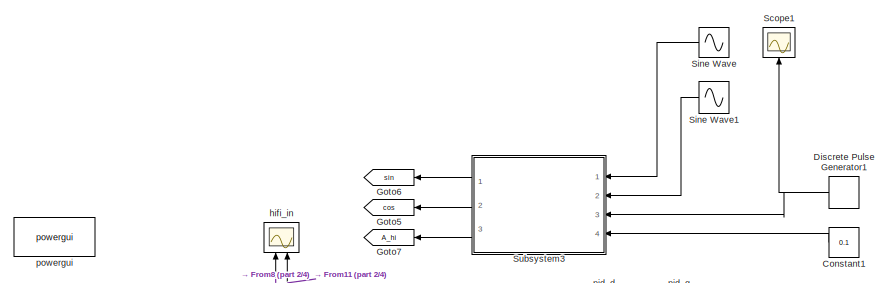
[diagram: root canvas - part 1/4, top center region]
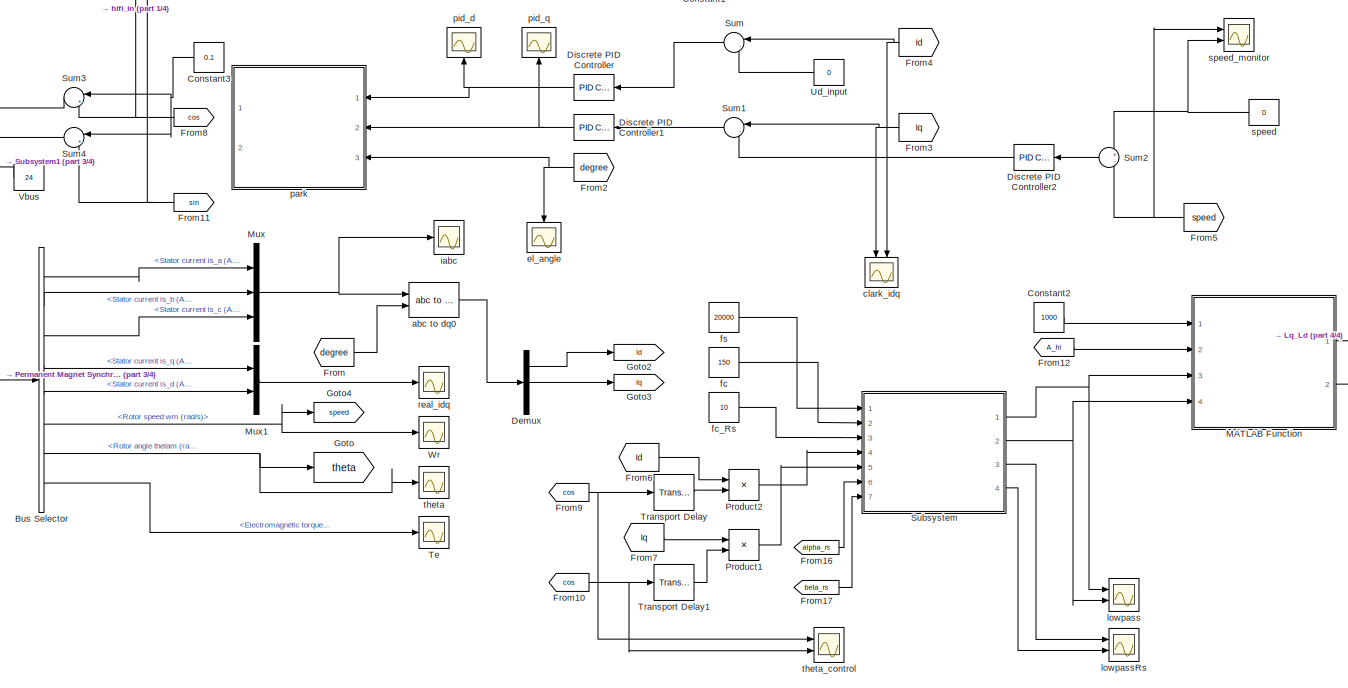
[diagram: root canvas - part 2/4, central region]
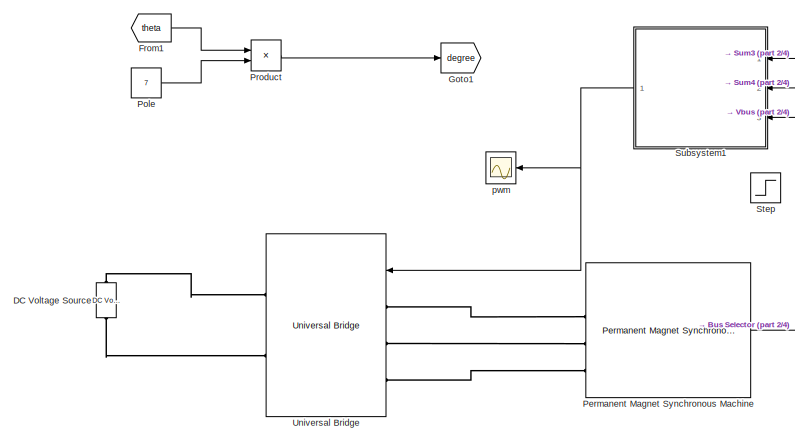
[diagram: root canvas - part 3/4, middle left region]
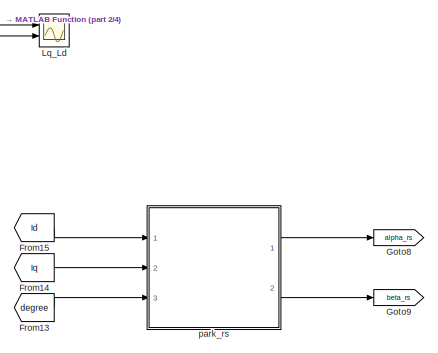
[diagram: root canvas - part 4/4, bottom right region]
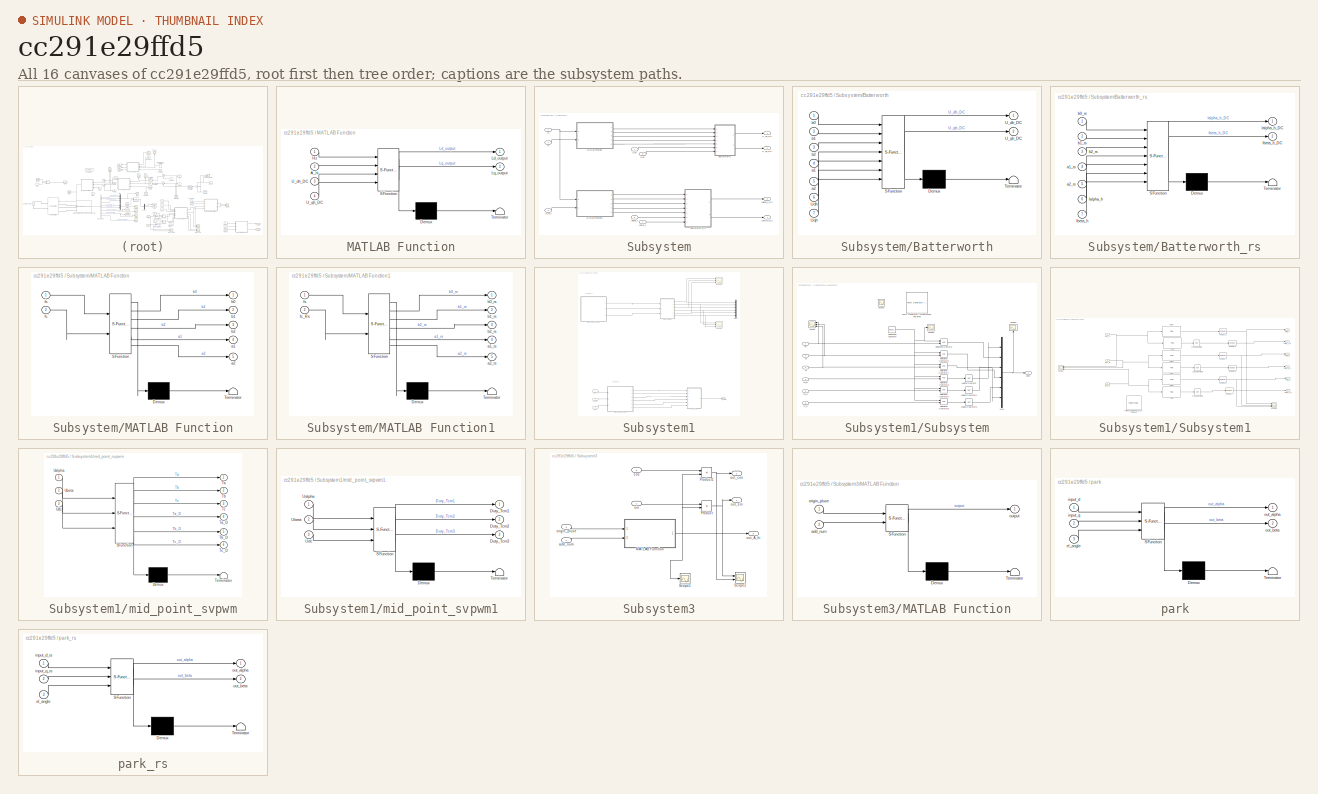
[diagram: thumbnail index - all 16 canvases of the model, root first then tree order]
MODEL slx_cc291e29ffd5
KIND model
CONFIG AbsTol = auto
CONFIG EnableMultiTasking = off
CONFIG FixedStep = auto
CONFIG MaxStep = 1e-8
CONFIG MinStep = auto
CONFIG RelTol = 1e-3
CONFIG SampleTimeConstraint = Unconstrained
CONFIG SolverName = VariableStepAuto
CONFIG StartTime = 0.0
CONFIG StopTime = 1.5
BLOCK [BusSelector] Bus Selector
  OutputSignals = Stator current is_a (A),Stator current is_b (A),Stator current is_c (A),Stator current is_q (A),Stator current is_d (A),Rotor speed wm (rad/s),Rotor angle thetam (rad),Electromagnetic torque Te (N*m)
  Ports = [1, 8]
BLOCK [Constant] Constant1
  Value = 0.1
BLOCK [Constant] Constant2
  Value = 1000
BLOCK [Constant] Constant3
  Value = 0.1
BLOCK [Reference] DC Voltage Source  REF=spsDCVoltageSourceLib/DC Voltage Source
  Ports = [0, 0, 0, 0, 0, 1, 1]
  SourceBlock = spsDCVoltageSourceLib/DC Voltage Source
  SourceProductBaseCode = PS
  SourceType = DC Voltage Source
BLOCK [Demux] Demux
  Outputs = 3
  Ports = [1, 3]
BLOCK [Reference] Discrete PID Controller  REF=slpidlib/PID Controller
  Ports = [1, 1]
  SourceBlock = slpidlib/PID Controller
  SourceProductBaseCode = SL
  SourceType = PID 1dof
BLOCK [Reference] Discrete PID Controller1  REF=slpidlib/PID Controller
  Ports = [1, 1]
  SourceBlock = slpidlib/PID Controller
  SourceProductBaseCode = SL
  SourceType = PID 1dof
BLOCK [Reference] Discrete PID Controller2  REF=slpidlib/PID Controller
  Ports = [1, 1]
  SourceBlock = slpidlib/PID Controller
  SourceProductBaseCode = SL
  SourceType = PID 1dof
BLOCK [DiscretePulseGenerator] Discrete Pulse Generator1
  Period = 50
  Ports = [0, 1]
  PulseWidth = 25
  SampleTime = 0.001
BLOCK [From] From
  GotoTag = degree
BLOCK [From] From1
  GotoTag = theta
BLOCK [From] From10
  GotoTag = cos
BLOCK [From] From11
  GotoTag = sin
BLOCK [From] From12
  GotoTag = A_hi
BLOCK [From] From13
  GotoTag = degree
BLOCK [From] From14
  GotoTag = Iq
BLOCK [From] From15
  GotoTag = Id
BLOCK [From] From16
  GotoTag = alpha_rs
BLOCK [From] From17
  GotoTag = beta_rs
BLOCK [From] From2
  GotoTag = degree
BLOCK [From] From3
  GotoTag = Iq
BLOCK [From] From4
  GotoTag = Id
BLOCK [From] From5
  GotoTag = speed
BLOCK [From] From6
  GotoTag = Id
BLOCK [From] From7
  GotoTag = Iq
BLOCK [From] From8
  GotoTag = cos
BLOCK [From] From9
  GotoTag = cos
BLOCK [Goto] Goto
  GotoTag = theta
BLOCK [Goto] Goto1
  GotoTag = degree
BLOCK [Goto] Goto2
  GotoTag = Id
BLOCK [Goto] Goto3
  GotoTag = Iq
BLOCK [Goto] Goto4
  GotoTag = speed
BLOCK [Goto] Goto5
  GotoTag = cos
BLOCK [Goto] Goto6
  GotoTag = sin
BLOCK [Goto] Goto7
  GotoTag = A_hi
BLOCK [Goto] Goto8
  GotoTag = alpha_rs
BLOCK [Goto] Goto9
  GotoTag = beta_rs
BLOCK [Scope] Lq_Ld
  Floating = off
  NumInputPorts = 2
  Ports = [2]
  ScopeSpecificationString = Simulink.scopes.TimeScopeBlockCfg('CurrentConfiguration', extmgr.ConfigurationSet(extmgr.Configuration('Core','General UI',true),extmgr.Configuration('Core','Source UI',true),extmgr.Configuration('Sources','WiredSimulink',true,'DataLoggingVariableName','ScopeData1'),extmgr.Configuration('Visuals','Time Domain',true,'SerializedDisplays',{struct('MinYLimReal','-0.00055','MaxYLimReal','0.01275','YLab...<+1776ch>
BLOCK [SubSystem] MATLAB Function
  ErrorFcn = Stateflow.Translate.translate
  PermitHierarchicalResolution = ExplicitOnly
  Ports = [4, 2]
  RequestExecContextInheritance = off
  SFBlockType = MATLAB Function
  TreatAsAtomicUnit = on
BLOCK [Demux] MATLAB Function/ Demux 
  Outputs = 1
  Ports = [1, 1]
BLOCK [S-Function] MATLAB Function/ SFunction 
  EnableBusSupport = on
  FunctionName = sf_sfun
  PortCounts = [4 3]
  Ports = [4, 3]
  SFcnIsStateOwnerBlock = off
  SFunctionDeploymentMode = off
  Tag = Stateflow S-Function 6
BLOCK [Terminator] MATLAB Function/ Terminator 
BLOCK [Inport] MATLAB Function/A_hi
  Port = 2
BLOCK [Inport] MATLAB Function/Hz
BLOCK [Outport] MATLAB Function/Ld_output
BLOCK [Outport] MATLAB Function/Lq_output
  Port = 2
BLOCK [Inport] MATLAB Function/U_dh_DC
  Port = 3
BLOCK [Inport] MATLAB Function/U_qh_DC
  Port = 4
BLOCK [Mux] Mux
  DisplayOption = bar
  Inputs = 3
  Ports = [3, 1]
BLOCK [Mux] Mux1
  DisplayOption = bar
  Inputs = 2
  Ports = [2, 1]
BLOCK [Reference] Permanent Magnet Synchronous Machine  REF=spsPermanentMagnetSynchronousMachineLib/Permanent Magnet
Synchronous Machine
  Ports = [1, 1, 0, 0, 0, 3]
  SourceBlock = spsPermanentMagnetSynchronousMachineLib/Permanent Magnet\nSynchronous Machine
  SourceProductBaseCode = PS
  SourceType = Permanent Magnet Synchronous Machine
BLOCK [Constant] Pole
  Value = 7
BLOCK [Product] Product
  Ports = [2, 1]
BLOCK [Product] Product1
  Ports = [2, 1]
BLOCK [Product] Product2
  Ports = [2, 1]
BLOCK [Scope] Scope1
  Floating = off
  NameLocation = left
  NumInputPorts = 1
  Ports = [1]
  ScopeSpecificationString = Simulink.scopes.TimeScopeBlockCfg('CurrentConfiguration', extmgr.ConfigurationSet(extmgr.Configuration('Core','General UI',true),extmgr.Configuration('Core','Source UI',true),extmgr.Configuration('Sources','WiredSimulink',true,'DataLoggingVariableName','ScopeData2'),extmgr.Configuration('Visuals','Time Domain',true,'SerializedDisplays',{struct('MinYLimReal','-0.125','MaxYLimReal','1.125','YLabelRe...<+1438ch>
BLOCK [Sin] Sine Wave
  Amplitude = 0.3
  Frequency = 1000
  Ports = [0, 1]
  SampleTime = 5e-5
  Samples = 126
  SineType = Sample based
BLOCK [Sin] Sine Wave1
  Amplitude = 0.3
  Frequency = 1000
  Offset = 32
  Phase = 0.5*pi
  Ports = [0, 1]
  SampleTime = 5e-5
  Samples = 126
  SineType = Sample based
BLOCK [Step] Step
  After = 0
  Commented = on
  SampleTime = 0
  Time = 0.35
BLOCK [SubSystem] Subsystem
  Ports = [7, 4]
  RequestExecContextInheritance = off
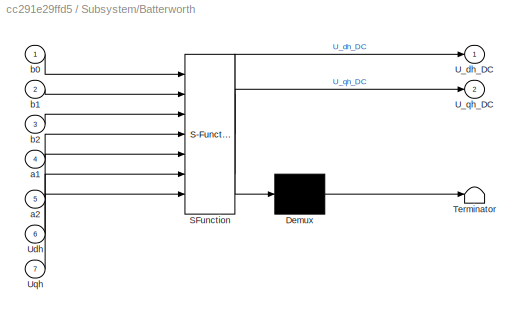
BLOCK [SubSystem] Subsystem/Batterworth
  ErrorFcn = Stateflow.Translate.translate
  PermitHierarchicalResolution = ExplicitOnly
  Ports = [7, 2]
  RequestExecContextInheritance = off
  SFBlockType = MATLAB Function
  SystemSampleTime = 0.0001
  TreatAsAtomicUnit = on
BLOCK [Demux] Subsystem/Batterworth/ Demux 
  Outputs = 1
  Ports = [1, 1]
BLOCK [S-Function] Subsystem/Batterworth/ SFunction 
  EnableBusSupport = on
  FunctionName = sf_sfun
  PortCounts = [7 3]
  Ports = [7, 3]
  SFcnIsStateOwnerBlock = off
  SFunctionDeploymentMode = off
  Tag = Stateflow S-Function 4
BLOCK [Terminator] Subsystem/Batterworth/ Terminator 
BLOCK [Outport] Subsystem/Batterworth/U_dh_DC
BLOCK [Outport] Subsystem/Batterworth/U_qh_DC
  Port = 2
BLOCK [Inport] Subsystem/Batterworth/Udh
  Port = 6
BLOCK [Inport] Subsystem/Batterworth/Uqh
  Port = 7
BLOCK [Inport] Subsystem/Batterworth/a1
  Port = 4
BLOCK [Inport] Subsystem/Batterworth/a2
  Port = 5
BLOCK [Inport] Subsystem/Batterworth/b0
BLOCK [Inport] Subsystem/Batterworth/b1
  Port = 2
BLOCK [Inport] Subsystem/Batterworth/b2
  Port = 3
BLOCK [SubSystem] Subsystem/Batterworth_rs
  ErrorFcn = Stateflow.Translate.translate
  PermitHierarchicalResolution = ExplicitOnly
  Ports = [7, 2]
  RequestExecContextInheritance = off
  SFBlockType = MATLAB Function
  SystemSampleTime = 0.0001
  TreatAsAtomicUnit = on
BLOCK [Demux] Subsystem/Batterworth_rs/ Demux 
  Outputs = 1
  Ports = [1, 1]
BLOCK [S-Function] Subsystem/Batterworth_rs/ SFunction 
  EnableBusSupport = on
  FunctionName = sf_sfun
  PortCounts = [7 3]
  Ports = [7, 3]
  SFcnIsStateOwnerBlock = off
  SFunctionDeploymentMode = off
  Tag = Stateflow S-Function 9
BLOCK [Terminator] Subsystem/Batterworth_rs/ Terminator 
BLOCK [Inport] Subsystem/Batterworth_rs/Ialpha_h
  Port = 6
BLOCK [Outport] Subsystem/Batterworth_rs/Ialpha_h_DC
BLOCK [Inport] Subsystem/Batterworth_rs/Ibeta_h
  Port = 7
BLOCK [Outport] Subsystem/Batterworth_rs/Ibeta_h_DC
  Port = 2
BLOCK [Inport] Subsystem/Batterworth_rs/a1_rs
  Port = 4
BLOCK [Inport] Subsystem/Batterworth_rs/a2_rs
  Port = 5
BLOCK [Inport] Subsystem/Batterworth_rs/b0_rs
BLOCK [Inport] Subsystem/Batterworth_rs/b1_rs
  Port = 2
BLOCK [Inport] Subsystem/Batterworth_rs/b2_rs
  Port = 3
BLOCK [Inport] Subsystem/Ialpha_h
  Port = 6
BLOCK [Outport] Subsystem/Ialpha_h_DC
  Port = 3
BLOCK [Inport] Subsystem/Ibeta_h
  Port = 7
BLOCK [Outport] Subsystem/Ibeta_h_DC
  Port = 4
BLOCK [SubSystem] Subsystem/MATLAB Function
  ErrorFcn = Stateflow.Translate.translate
  PermitHierarchicalResolution = ExplicitOnly
  Ports = [2, 5]
  RequestExecContextInheritance = off
  SFBlockType = MATLAB Function
  TreatAsAtomicUnit = on
BLOCK [Demux] Subsystem/MATLAB Function/ Demux 
  Outputs = 1
  Ports = [1, 1]
BLOCK [S-Function] Subsystem/MATLAB Function/ SFunction 
  EnableBusSupport = on
  FunctionName = sf_sfun
  PortCounts = [2 6]
  Ports = [2, 6]
  SFcnIsStateOwnerBlock = off
  SFunctionDeploymentMode = off
  Tag = Stateflow S-Function 5
BLOCK [Terminator] Subsystem/MATLAB Function/ Terminator 
BLOCK [Outport] Subsystem/MATLAB Function/a1
  Port = 4
BLOCK [Outport] Subsystem/MATLAB Function/a2
  Port = 5
BLOCK [Outport] Subsystem/MATLAB Function/b0
BLOCK [Outport] Subsystem/MATLAB Function/b1
  Port = 2
BLOCK [Outport] Subsystem/MATLAB Function/b2
  Port = 3
BLOCK [Inport] Subsystem/MATLAB Function/fc
  Port = 2
BLOCK [Inport] Subsystem/MATLAB Function/fs
BLOCK [SubSystem] Subsystem/MATLAB Function1
  ErrorFcn = Stateflow.Translate.translate
  PermitHierarchicalResolution = ExplicitOnly
  Ports = [2, 5]
  RequestExecContextInheritance = off
  SFBlockType = MATLAB Function
  TreatAsAtomicUnit = on
BLOCK [Demux] Subsystem/MATLAB Function1/ Demux 
  Outputs = 1
  Ports = [1, 1]
BLOCK [S-Function] Subsystem/MATLAB Function1/ SFunction 
  EnableBusSupport = on
  FunctionName = sf_sfun
  PortCounts = [2 6]
  Ports = [2, 6]
  SFcnIsStateOwnerBlock = off
  SFunctionDeploymentMode = off
  Tag = Stateflow S-Function 8
BLOCK [Terminator] Subsystem/MATLAB Function1/ Terminator 
BLOCK [Outport] Subsystem/MATLAB Function1/a1_rs
  Port = 4
BLOCK [Outport] Subsystem/MATLAB Function1/a2_rs
  Port = 5
BLOCK [Outport] Subsystem/MATLAB Function1/b0_rs
BLOCK [Outport] Subsystem/MATLAB Function1/b1_rs
  Port = 2
BLOCK [Outport] Subsystem/MATLAB Function1/b2_rs
  Port = 3
BLOCK [Inport] Subsystem/MATLAB Function1/fc_Rs
  Port = 2
BLOCK [Inport] Subsystem/MATLAB Function1/fs
BLOCK [Outport] Subsystem/U_dh_DC
BLOCK [Outport] Subsystem/U_qh_DC
  Port = 2
BLOCK [Inport] Subsystem/Udh
  Port = 4
BLOCK [Inport] Subsystem/Uqh
  Port = 5
BLOCK [Inport] Subsystem/fc
  Port = 2
BLOCK [Inport] Subsystem/fc_Rs
  Port = 3
BLOCK [Inport] Subsystem/fs
BLOCK [SubSystem] Subsystem1
  Ports = [3, 1]
  RequestExecContextInheritance = off
BLOCK [Outport] Subsystem1/All_pwm
BLOCK [Mux] Subsystem1/Mux1
  Commented = on
  DisplayOption = bar
  Inputs = 6
  Ports = [6, 1]
BLOCK [Scope] Subsystem1/Scope3
  Commented = on
  Floating = off
  NumInputPorts = 3
  Ports = [3]
  ScopeSpecificationString = Simulink.scopes.TimeScopeBlockCfg('CurrentConfiguration', extmgr.ConfigurationSet(extmgr.Configuration('Core','General UI',true),extmgr.Configuration('Core','Source UI',true),extmgr.Configuration('Sources','WiredSimulink',true,'DataLoggingVariableName','ScopeData1'),extmgr.Configuration('Visuals','Time Domain',true,'SerializedDisplays',{struct('MinYLimReal','-0.1','MaxYLimReal','1.1','YLabelReal',...<+1863ch>
BLOCK [Scope] Subsystem1/Scope4
  Commented = on
  Floating = off
  NumInputPorts = 3
  Ports = [3]
  ScopeSpecificationString = Simulink.scopes.TimeScopeBlockCfg('CurrentConfiguration', extmgr.ConfigurationSet(extmgr.Configuration('Core','General UI',true),extmgr.Configuration('Core','Source UI',true),extmgr.Configuration('Sources','WiredSimulink',true,'DataLoggingVariableName','ScopeData2'),extmgr.Configuration('Visuals','Time Domain',true,'SerializedDisplays',{struct('MinYLimReal','-0.1','MaxYLimReal','1.1','YLabelReal',...<+1863ch>
BLOCK [SubSystem] Subsystem1/Subsystem
  Ports = [6, 1]
  RequestExecContextInheritance = off
BLOCK [Logic] Subsystem1/Subsystem/Logical Operator
  AllPortsSameDT = off
  Operator = NOT
  OutDataTypeStr = boolean
  Ports = [1, 1]
BLOCK [Logic] Subsystem1/Subsystem/Logical Operator1
  AllPortsSameDT = off
  Operator = NOT
  OutDataTypeStr = boolean
  Ports = [1, 1]
BLOCK [Logic] Subsystem1/Subsystem/Logical Operator2
  AllPortsSameDT = off
  Operator = NOT
  OutDataTypeStr = boolean
  Ports = [1, 1]
BLOCK [Mux] Subsystem1/Subsystem/Mux
  DisplayOption = bar
  Inputs = 6
  Ports = [6, 1]
BLOCK [Reference] Subsystem1/Subsystem/PWM Generator (Three-phase, Two-level)  REF=eePwmGeneratorTwoLevel/PWM Generator
(Three-phase, Two-level)
  Commented = on
  Ports = [2, 2]
  SourceBlock = eePwmGeneratorTwoLevel/PWM Generator\n(Three-phase, Two-level)
  SourceProductBaseCode = PS
  SourceType = PWM Generator (three-phase, two-level)
BLOCK [RelationalOperator] Subsystem1/Subsystem/Relational Operator
  InputSameDT = off
  OutDataTypeStr = boolean
  Ports = [2, 1]
  RndMeth = Simplest
BLOCK [RelationalOperator] Subsystem1/Subsystem/Relational Operator1
  InputSameDT = off
  OutDataTypeStr = boolean
  Ports = [2, 1]
  RndMeth = Simplest
BLOCK [RelationalOperator] Subsystem1/Subsystem/Relational Operator2
  InputSameDT = off
  OutDataTypeStr = boolean
  Ports = [2, 1]
  RndMeth = Simplest
BLOCK [RelationalOperator] Subsystem1/Subsystem/Relational Operator3
  InputSameDT = off
  OutDataTypeStr = boolean
  Ports = [2, 1]
  RndMeth = Simplest
BLOCK [RelationalOperator] Subsystem1/Subsystem/Relational Operator4
  InputSameDT = off
  OutDataTypeStr = boolean
  Ports = [2, 1]
  RndMeth = Simplest
BLOCK [RelationalOperator] Subsystem1/Subsystem/Relational Operator5
  InputSameDT = off
  OutDataTypeStr = boolean
  Ports = [2, 1]
  RndMeth = Simplest
BLOCK [Reference] Subsystem1/Subsystem/Repeating Sequence  REF=simulink/Sources/Repeating
Sequence
  Ports = [0, 1]
  SourceBlock = simulink/Sources/Repeating\nSequence
  SourceProductBaseCode = SL
  SourceType = Repeating table
BLOCK [Scope] Subsystem1/Subsystem/Scope
  Floating = off
  NumInputPorts = 3
  Ports = [3]
  ScopeSpecificationString = Simulink.scopes.TimeScopeBlockCfg('CurrentConfiguration', extmgr.ConfigurationSet(extmgr.Configuration('Core','General UI',true),extmgr.Configuration('Core','Source UI',true),extmgr.Configuration('Sources','WiredSimulink',true,'DataLoggingVariableName','ScopeData1'),extmgr.Configuration('Visuals','Time Domain',true,'SerializedDisplays',{struct('MinYLimReal','1180.19238','MaxYLimReal','1699.80762',...<+1851ch>
BLOCK [Scope] Subsystem1/Subsystem/Scope1
  Commented = on
  Floating = off
  NumInputPorts = 1
  Ports = [1]
  ScopeSpecificationString = Simulink.scopes.TimeScopeBlockCfg('CurrentConfiguration', extmgr.ConfigurationSet(extmgr.Configuration('Core','General UI',true),extmgr.Configuration('Core','Source UI',true),extmgr.Configuration('Sources','WiredSimulink',true,'DataLoggingVariableName','ScopeData6'),extmgr.Configuration('Visuals','Time Domain',true,'SerializedDisplays',{struct('MinYLimReal','10.91747','MaxYLimReal','13.08253','YLa...<+1598ch>
BLOCK [Scope] Subsystem1/Subsystem/Scope2
  Floating = off
  NameLocation = left
  NumInputPorts = 1
  Ports = [1]
  ScopeSpecificationString = Simulink.scopes.TimeScopeBlockCfg('CurrentConfiguration', extmgr.ConfigurationSet(extmgr.Configuration('Core','General UI',true),extmgr.Configuration('Core','Source UI',true),extmgr.Configuration('Sources','WiredSimulink',true,'DataLoggingVariableName','ScopeData3'),extmgr.Configuration('Visuals','Time Domain',true,'SerializedDisplays',{struct('MinYLimReal','-0.125','MaxYLimReal','1.125','YLabelRe...<+2005ch>
BLOCK [Scope] Subsystem1/Subsystem/Scope3
  Floating = off
  NumInputPorts = 1
  Ports = [1]
  ScopeSpecificationString = Simulink.scopes.TimeScopeBlockCfg('CurrentConfiguration', extmgr.ConfigurationSet(extmgr.Configuration('Core','General UI',true),extmgr.Configuration('Core','Source UI',true),extmgr.Configuration('Sources','WiredSimulink',true,'DataLoggingVariableName','ScopeData1'),extmgr.Configuration('Visuals','Time Domain',true,'SerializedDisplays',{struct('MinYLimReal','-360.00000','MaxYLimReal','3240.00000',...<+1536ch>
BLOCK [Inport] Subsystem1/Subsystem/Ta
  OutDataTypeStr = double
BLOCK [Inport] Subsystem1/Subsystem/Ta_D
  OutDataTypeStr = double
  Port = 4
BLOCK [Inport] Subsystem1/Subsystem/Tb
  OutDataTypeStr = double
  Port = 2
BLOCK [Inport] Subsystem1/Subsystem/Tb_D
  OutDataTypeStr = double
  Port = 5
BLOCK [Inport] Subsystem1/Subsystem/Tc
  OutDataTypeStr = double
  Port = 3
BLOCK [Inport] Subsystem1/Subsystem/Tc_D
  OutDataTypeStr = double
  Port = 6
BLOCK [Outport] Subsystem1/Subsystem/pwm
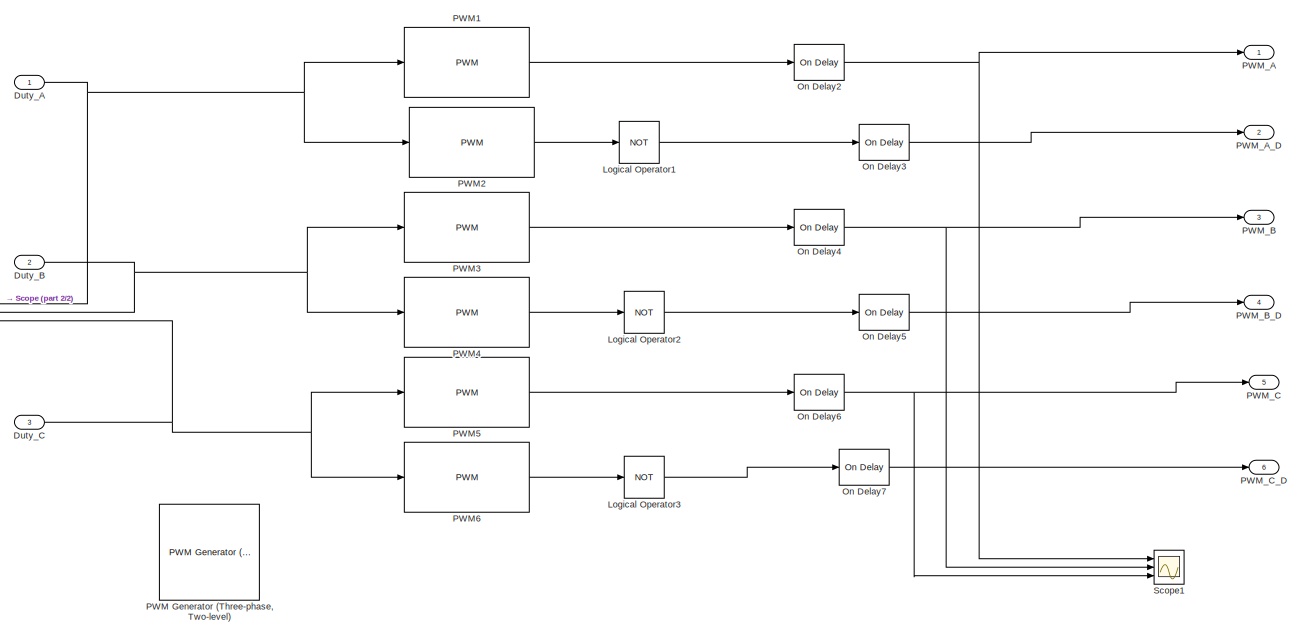
[diagram: Subsystem1/Subsystem1 - part 1/2, most of the canvas]
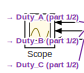
[diagram: Subsystem1/Subsystem1 - part 2/2, middle left region]
BLOCK [SubSystem] Subsystem1/Subsystem1
  Commented = on
  Ports = [3, 6]
  RequestExecContextInheritance = off
BLOCK [Inport] Subsystem1/Subsystem1/Duty_A
  OutDataTypeStr = double
BLOCK [Inport] Subsystem1/Subsystem1/Duty_B
  OutDataTypeStr = double
  Port = 2
BLOCK [Inport] Subsystem1/Subsystem1/Duty_C
  OutDataTypeStr = double
  Port = 3
BLOCK [Logic] Subsystem1/Subsystem1/Logical Operator1
  AllPortsSameDT = off
  Operator = NOT
  OutDataTypeStr = boolean
  Ports = [1, 1]
BLOCK [Logic] Subsystem1/Subsystem1/Logical Operator2
  AllPortsSameDT = off
  Operator = NOT
  OutDataTypeStr = boolean
  Ports = [1, 1]
BLOCK [Logic] Subsystem1/Subsystem1/Logical Operator3
  AllPortsSameDT = off
  Operator = NOT
  OutDataTypeStr = boolean
  Ports = [1, 1]
BLOCK [Reference] Subsystem1/Subsystem1/On Delay2  REF=spsOnDelayLib/On Delay
  Ports = [1, 1]
  SourceBlock = spsOnDelayLib/On Delay
  SourceProductBaseCode = PS
  SourceType = On/Off Delay
BLOCK [Reference] Subsystem1/Subsystem1/On Delay3  REF=spsOnDelayLib/On Delay
  Ports = [1, 1]
  SourceBlock = spsOnDelayLib/On Delay
  SourceProductBaseCode = PS
  SourceType = On/Off Delay
BLOCK [Reference] Subsystem1/Subsystem1/On Delay4  REF=spsOnDelayLib/On Delay
  Ports = [1, 1]
  SourceBlock = spsOnDelayLib/On Delay
  SourceProductBaseCode = PS
  SourceType = On/Off Delay
BLOCK [Reference] Subsystem1/Subsystem1/On Delay5  REF=spsOnDelayLib/On Delay
  Ports = [1, 1]
  SourceBlock = spsOnDelayLib/On Delay
  SourceProductBaseCode = PS
  SourceType = On/Off Delay
BLOCK [Reference] Subsystem1/Subsystem1/On Delay6  REF=spsOnDelayLib/On Delay
  Ports = [1, 1]
  SourceBlock = spsOnDelayLib/On Delay
  SourceProductBaseCode = PS
  SourceType = On/Off Delay
BLOCK [Reference] Subsystem1/Subsystem1/On Delay7  REF=spsOnDelayLib/On Delay
  Ports = [1, 1]
  SourceBlock = spsOnDelayLib/On Delay
  SourceProductBaseCode = PS
  SourceType = On/Off Delay
BLOCK [Reference] Subsystem1/Subsystem1/PWM Generator (Three-phase, Two-level)  REF=eePwmGeneratorTwoLevel/PWM Generator
(Three-phase, Two-level)
  Ports = [2, 2]
  SourceBlock = eePwmGeneratorTwoLevel/PWM Generator\n(Three-phase, Two-level)
  SourceProductBaseCode = PS
  SourceType = PWM Generator (three-phase, two-level)
BLOCK [Reference] Subsystem1/Subsystem1/PWM1  REF=simulink/Discontinuities/PWM
  DisableCoverage = on
  Ports = [1, 1]
  SourceBlock = simulink/Discontinuities/PWM
  SourceProductBaseCode = SL
  SourceType = PWM
BLOCK [Reference] Subsystem1/Subsystem1/PWM2  REF=simulink/Discontinuities/PWM
  DisableCoverage = on
  Ports = [1, 1]
  SourceBlock = simulink/Discontinuities/PWM
  SourceProductBaseCode = SL
  SourceType = PWM
BLOCK [Reference] Subsystem1/Subsystem1/PWM3  REF=simulink/Discontinuities/PWM
  DisableCoverage = on
  Ports = [1, 1]
  SourceBlock = simulink/Discontinuities/PWM
  SourceProductBaseCode = SL
  SourceType = PWM
BLOCK [Reference] Subsystem1/Subsystem1/PWM4  REF=simulink/Discontinuities/PWM
  DisableCoverage = on
  Ports = [1, 1]
  SourceBlock = simulink/Discontinuities/PWM
  SourceProductBaseCode = SL
  SourceType = PWM
BLOCK [Reference] Subsystem1/Subsystem1/PWM5  REF=simulink/Discontinuities/PWM
  DisableCoverage = on
  Ports = [1, 1]
  SourceBlock = simulink/Discontinuities/PWM
  SourceProductBaseCode = SL
  SourceType = PWM
BLOCK [Reference] Subsystem1/Subsystem1/PWM6  REF=simulink/Discontinuities/PWM
  DisableCoverage = on
  Ports = [1, 1]
  SourceBlock = simulink/Discontinuities/PWM
  SourceProductBaseCode = SL
  SourceType = PWM
BLOCK [Outport] Subsystem1/Subsystem1/PWM_A
  OutDataTypeStr = double
BLOCK [Outport] Subsystem1/Subsystem1/PWM_A_D
  OutDataTypeStr = double
  Port = 2
BLOCK [Outport] Subsystem1/Subsystem1/PWM_B
  OutDataTypeStr = double
  Port = 3
BLOCK [Outport] Subsystem1/Subsystem1/PWM_B_D
  OutDataTypeStr = double
  Port = 4
BLOCK [Outport] Subsystem1/Subsystem1/PWM_C
  OutDataTypeStr = double
  Port = 5
BLOCK [Outport] Subsystem1/Subsystem1/PWM_C_D
  OutDataTypeStr = double
  Port = 6
BLOCK [Scope] Subsystem1/Subsystem1/Scope
  Floating = off
  NumInputPorts = 3
  Ports = [3]
  ScopeSpecificationString = Simulink.scopes.TimeScopeBlockCfg('CurrentConfiguration', extmgr.ConfigurationSet(extmgr.Configuration('Core','General UI',true),extmgr.Configuration('Core','Source UI',true),extmgr.Configuration('Sources','WiredSimulink',true,'DataLoggingVariableName','ScopeData1'),extmgr.Configuration('Visuals','Time Domain',true,'SerializedDisplays',{struct('MinYLimReal','0.00000','MaxYLimReal','1.00000','YLabe...<+1466ch>
BLOCK [Scope] Subsystem1/Subsystem1/Scope1
  Floating = off
  NumInputPorts = 3
  Ports = [3]
  ScopeSpecificationString = Simulink.scopes.TimeScopeBlockCfg('CurrentConfiguration', extmgr.ConfigurationSet(extmgr.Configuration('Core','General UI',true),extmgr.Configuration('Core','Source UI',true),extmgr.Configuration('Sources','WiredSimulink',true,'DataLoggingVariableName','ScopeData2'),extmgr.Configuration('Visuals','Time Domain',true,'SerializedDisplays',{struct('MinYLimReal','-10.00000','MaxYLimReal','10.00000','YL...<+1486ch>
BLOCK [Inport] Subsystem1/Ualpha
BLOCK [Inport] Subsystem1/Ubeta
  Port = 2
BLOCK [Inport] Subsystem1/Vbus
  Port = 3
BLOCK [SubSystem] Subsystem1/mid_point_svpwm
  ErrorFcn = Stateflow.Translate.translate
  PermitHierarchicalResolution = ExplicitOnly
  Ports = [3, 6]
  RequestExecContextInheritance = off
  SFBlockType = MATLAB Function
  TreatAsAtomicUnit = on
BLOCK [Demux] Subsystem1/mid_point_svpwm/ Demux 
  Outputs = 1
  Ports = [1, 1]
BLOCK [S-Function] Subsystem1/mid_point_svpwm/ SFunction 
  EnableBusSupport = on
  FunctionName = sf_sfun
  PortCounts = [3 7]
  Ports = [3, 7]
  SFcnIsStateOwnerBlock = off
  SFunctionDeploymentMode = off
  Tag = Stateflow S-Function 2
BLOCK [Terminator] Subsystem1/mid_point_svpwm/ Terminator 
BLOCK [Outport] Subsystem1/mid_point_svpwm/Ta
BLOCK [Outport] Subsystem1/mid_point_svpwm/Ta_D
  Port = 4
BLOCK [Outport] Subsystem1/mid_point_svpwm/Tb
  Port = 2
BLOCK [Outport] Subsystem1/mid_point_svpwm/Tb_D
  Port = 5
BLOCK [Outport] Subsystem1/mid_point_svpwm/Tc
  Port = 3
BLOCK [Outport] Subsystem1/mid_point_svpwm/Tc_D
  Port = 6
BLOCK [Inport] Subsystem1/mid_point_svpwm/Ualpha
BLOCK [Inport] Subsystem1/mid_point_svpwm/Ubeta
  Port = 2
BLOCK [Inport] Subsystem1/mid_point_svpwm/Udc
  Port = 3
BLOCK [SubSystem] Subsystem1/mid_point_svpwm1
  Commented = on
  ErrorFcn = Stateflow.Translate.translate
  PermitHierarchicalResolution = ExplicitOnly
  Ports = [3, 3]
  RequestExecContextInheritance = off
  SFBlockType = MATLAB Function
  TreatAsAtomicUnit = on
BLOCK [Demux] Subsystem1/mid_point_svpwm1/ Demux 
  Outputs = 1
  Ports = [1, 1]
BLOCK [S-Function] Subsystem1/mid_point_svpwm1/ SFunction 
  EnableBusSupport = on
  FunctionName = sf_sfun
  PortCounts = [3 4]
  Ports = [3, 4]
  SFcnIsStateOwnerBlock = off
  SFunctionDeploymentMode = off
  Tag = Stateflow S-Function 3
BLOCK [Terminator] Subsystem1/mid_point_svpwm1/ Terminator 
BLOCK [Outport] Subsystem1/mid_point_svpwm1/Duty_Tcm1
BLOCK [Outport] Subsystem1/mid_point_svpwm1/Duty_Tcm2
  Port = 2
BLOCK [Outport] Subsystem1/mid_point_svpwm1/Duty_Tcm3
  Port = 3
BLOCK [Inport] Subsystem1/mid_point_svpwm1/Ualpha
BLOCK [Inport] Subsystem1/mid_point_svpwm1/Ubeta
  Port = 2
BLOCK [Inport] Subsystem1/mid_point_svpwm1/Udc
  Port = 3
BLOCK [SubSystem] Subsystem3
  Ports = [4, 3]
  RequestExecContextInheritance = off
BLOCK [SubSystem] Subsystem3/MATLAB Function
  ErrorFcn = Stateflow.Translate.translate
  PermitHierarchicalResolution = ExplicitOnly
  Ports = [2, 1]
  RequestExecContextInheritance = off
  SFBlockType = MATLAB Function
  TreatAsAtomicUnit = on
BLOCK [Demux] Subsystem3/MATLAB Function/ Demux 
  Outputs = 1
  Ports = [1, 1]
BLOCK [S-Function] Subsystem3/MATLAB Function/ SFunction 
  EnableBusSupport = on
  FunctionName = sf_sfun
  PortCounts = [2 2]
  Ports = [2, 2]
  SFcnIsStateOwnerBlock = off
  SFunctionDeploymentMode = off
  Tag = Stateflow S-Function 7
BLOCK [Terminator] Subsystem3/MATLAB Function/ Terminator 
BLOCK [Inport] Subsystem3/MATLAB Function/add_num
  Port = 2
BLOCK [Inport] Subsystem3/MATLAB Function/origin_pluse
BLOCK [Outport] Subsystem3/MATLAB Function/output
BLOCK [Product] Subsystem3/Product
  Ports = [2, 1]
BLOCK [Product] Subsystem3/Product1
  Ports = [2, 1]
BLOCK [Scope] Subsystem3/Scope1
  Floating = off
  NumInputPorts = 1
  Ports = [1]
  ScopeSpecificationString = Simulink.scopes.TimeScopeBlockCfg('CurrentConfiguration', extmgr.ConfigurationSet(extmgr.Configuration('Core','General UI',true),extmgr.Configuration('Core','Source UI',true),extmgr.Configuration('Sources','WiredSimulink',true,'DataLoggingVariableName','ScopeData1'),extmgr.Configuration('Visuals','Time Domain',true,'SerializedDisplays',{struct('MinYLimReal','0.25','MaxYLimReal','2.75','YLabelReal'...<+1428ch>
BLOCK [Scope] Subsystem3/Scope2
  Floating = off
  NumInputPorts = 2
  Ports = [2]
  ScopeSpecificationString = Simulink.scopes.TimeScopeBlockCfg('CurrentConfiguration', extmgr.ConfigurationSet(extmgr.Configuration('Core','General UI',true),extmgr.Configuration('Core','Source UI',true),extmgr.Configuration('Sources','WiredSimulink',true,'DataLoggingVariableName','ScopeData1'),extmgr.Configuration('Visuals','Time Domain',true,'SerializedDisplays',{struct('MinYLimReal','-2.49995','MaxYLimReal','2.49995','YLab...<+1433ch>
BLOCK [Inport] Subsystem3/add_num
  Port = 4
BLOCK [Inport] Subsystem3/cos
  Port = 2
BLOCK [Inport] Subsystem3/origin_pluse
  Port = 3
BLOCK [Outport] Subsystem3/out_A_hi
  Port = 3
BLOCK [Outport] Subsystem3/out_cos
  Port = 2
BLOCK [Outport] Subsystem3/out_sin
BLOCK [Inport] Subsystem3/sin
BLOCK [Sum] Sum
  Inputs = |-+
  NameLocation = top
  Ports = [2, 1]
BLOCK [Sum] Sum1
  Inputs = |-+
  NameLocation = top
  Ports = [2, 1]
BLOCK [Sum] Sum2
  Inputs = +-
  NameLocation = top
  Ports = [2, 1]
BLOCK [Sum] Sum3
  Inputs = |++
  Ports = [2, 1]
BLOCK [Sum] Sum4
  Inputs = |++
  Ports = [2, 1]
BLOCK [Scope] Te
  Floating = off
  NumInputPorts = 1
  Ports = [1]
  ScopeSpecificationString = Simulink.scopes.TimeScopeBlockCfg('CurrentConfiguration', extmgr.ConfigurationSet(extmgr.Configuration('Core','General UI',true),extmgr.Configuration('Core','Source UI',true),extmgr.Configuration('Sources','WiredSimulink',true,'DataLoggingVariableName','ScopeData5'),extmgr.Configuration('Visuals','Time Domain',true,'SerializedDisplays',{struct('MinYLimReal','-1.28328','MaxYLimReal','4.38318','YLab...<+1392ch>
BLOCK [TransportDelay] Transport Delay
  DelayTime = 2e-8
  Ports = [1, 1]
BLOCK [TransportDelay] Transport Delay1
  DelayTime = 2e-8
  Ports = [1, 1]
BLOCK [Constant] Ud_input
  Value = 0
BLOCK [Reference] Universal Bridge  REF=spsUniversalBridgeLib/Universal Bridge
  Ports = [1, 0, 0, 0, 0, 3, 2]
  SourceBlock = spsUniversalBridgeLib/Universal Bridge
  SourceProductBaseCode = PS
  SourceType = Universal Bridge
BLOCK [Constant] Vbus
  Value = 24
BLOCK [Scope] Wr
  Floating = off
  NumInputPorts = 1
  Ports = [1]
  ScopeSpecificationString = Simulink.scopes.TimeScopeBlockCfg('CurrentConfiguration', extmgr.ConfigurationSet(extmgr.Configuration('Core','General UI',true),extmgr.Configuration('Core','Source UI',true),extmgr.Configuration('Sources','WiredSimulink',true,'DataLoggingVariableName','ScopeData3'),extmgr.Configuration('Visuals','Time Domain',true,'SerializedDisplays',{struct('MinYLimReal','-0.04059','MaxYLimReal','0.36533','YLab...<+1509ch>
BLOCK [Reference] abc to dq0  REF=spsabctodq0Lib/abc to dq0
  Ports = [2, 1]
  SourceBlock = spsabctodq0Lib/abc to dq0
  SourceProductBaseCode = PS
  SourceType = abc to dq0 Transformation
BLOCK [Scope] clark_idq
  Floating = off
  NameLocation = left
  NumInputPorts = 2
  Ports = [2]
  ScopeSpecificationString = Simulink.scopes.TimeScopeBlockCfg('CurrentConfiguration', extmgr.ConfigurationSet(extmgr.Configuration('Core','General UI',true),extmgr.Configuration('Core','Source UI',true),extmgr.Configuration('Sources','WiredSimulink',true,'DataLoggingVariableName','ScopeData4'),extmgr.Configuration('Visuals','Time Domain',true,'SerializedDisplays',{struct('MinYLimReal','-10.63266','MaxYLimReal','10.52399','YL...<+1551ch>
BLOCK [Scope] el_angle
  Floating = off
  NameLocation = left
  NumInputPorts = 1
  Ports = [1]
  ScopeSpecificationString = Simulink.scopes.TimeScopeBlockCfg('CurrentConfiguration', extmgr.ConfigurationSet(extmgr.Configuration('Core','General UI',true),extmgr.Configuration('Core','Source UI',true),extmgr.Configuration('Sources','WiredSimulink',true,'DataLoggingVariableName','ScopeData3'),extmgr.Configuration('Visuals','Time Domain',true,'SerializedDisplays',{struct('MinYLimReal','-67.03493','MaxYLimReal','603.30864','Y...<+1521ch>
BLOCK [Constant] fc
  Value = 150
BLOCK [Constant] fc_Rs
  Value = 10
BLOCK [Constant] fs
  Value = 20000
BLOCK [Scope] hifi_in
  Floating = off
  NameLocation = right
  NumInputPorts = 2
  Ports = [2]
  ScopeSpecificationString = Simulink.scopes.TimeScopeBlockCfg('CurrentConfiguration', extmgr.ConfigurationSet(extmgr.Configuration('Core','General UI',true),extmgr.Configuration('Core','Source UI',true),extmgr.Configuration('Sources','WiredSimulink',true,'DataLoggingVariableName','ScopeData2'),extmgr.Configuration('Visuals','Time Domain',true,'SerializedDisplays',{struct('MinYLimReal','-0.49064','MaxYLimReal','0.49172','YLab...<+1528ch>
BLOCK [Scope] iabc
  Floating = off
  NumInputPorts = 1
  Ports = [1]
  ScopeSpecificationString = Simulink.scopes.TimeScopeBlockCfg('CurrentConfiguration', extmgr.ConfigurationSet(extmgr.Configuration('Core','General UI',true),extmgr.Configuration('Core','Source UI',true),extmgr.Configuration('Sources','WiredSimulink',true,'DataLoggingVariableName','ScopeData5'),extmgr.Configuration('Visuals','Time Domain',true,'SerializedDisplays',{struct('MinYLimReal','-10.66968','MaxYLimReal','10.61737','YL...<+1653ch>
BLOCK [Scope] lowpass
  Floating = off
  NumInputPorts = 2
  Ports = [2]
  ScopeSpecificationString = Simulink.scopes.TimeScopeBlockCfg('CurrentConfiguration', extmgr.ConfigurationSet(extmgr.Configuration('Core','General UI',true),extmgr.Configuration('Core','Source UI',true),extmgr.Configuration('Sources','WiredSimulink',true,'DataLoggingVariableName','ScopeData1'),extmgr.Configuration('Visuals','Time Domain',true,'SerializedDisplays',{struct('MinYLimReal','-0.59607','MaxYLimReal','0.56401','YLab...<+1565ch>
BLOCK [Scope] lowpassRs
  Floating = off
  NumInputPorts = 2
  Ports = [2]
  ScopeSpecificationString = Simulink.scopes.TimeScopeBlockCfg('CurrentConfiguration', extmgr.ConfigurationSet(extmgr.Configuration('Core','General UI',true),extmgr.Configuration('Core','Source UI',true),extmgr.Configuration('Sources','WiredSimulink',true,'DataLoggingVariableName','ScopeData1'),extmgr.Configuration('Visuals','Time Domain',true,'SerializedDisplays',{struct('MinYLimReal','-0.00141','MaxYLimReal','0.00555','YLab...<+1573ch>
BLOCK [SubSystem] park
  ErrorFcn = Stateflow.Translate.translate
  PermitHierarchicalResolution = ExplicitOnly
  Ports = [3, 2]
  RequestExecContextInheritance = off
  SFBlockType = MATLAB Function
  TreatAsAtomicUnit = on
BLOCK [Demux] park/ Demux 
  Outputs = 1
  Ports = [1, 1]
BLOCK [S-Function] park/ SFunction 
  EnableBusSupport = on
  FunctionName = sf_sfun
  PortCounts = [3 3]
  Ports = [3, 3]
  SFcnIsStateOwnerBlock = off
  SFunctionDeploymentMode = off
  Tag = Stateflow S-Function 1
BLOCK [Terminator] park/ Terminator 
BLOCK [Inport] park/el_angle
  Port = 3
BLOCK [Inport] park/input_d
BLOCK [Inport] park/input_q
  Port = 2
BLOCK [Outport] park/out_alpha
BLOCK [Outport] park/out_beta
  Port = 2
BLOCK [SubSystem] park_rs
  ErrorFcn = Stateflow.Translate.translate
  PermitHierarchicalResolution = ExplicitOnly
  Ports = [3, 2]
  RequestExecContextInheritance = off
  SFBlockType = MATLAB Function
  TreatAsAtomicUnit = on
BLOCK [Demux] park_rs/ Demux 
  Outputs = 1
  Ports = [1, 1]
BLOCK [S-Function] park_rs/ SFunction 
  EnableBusSupport = on
  FunctionName = sf_sfun
  PortCounts = [3 3]
  Ports = [3, 3]
  SFcnIsStateOwnerBlock = off
  SFunctionDeploymentMode = off
  Tag = Stateflow S-Function 10
BLOCK [Terminator] park_rs/ Terminator 
BLOCK [Inport] park_rs/el_angle
  Port = 3
BLOCK [Inport] park_rs/input_d_rs
BLOCK [Inport] park_rs/input_q_rs
  Port = 2
BLOCK [Outport] park_rs/out_alpha
BLOCK [Outport] park_rs/out_beta
  Port = 2
BLOCK [Scope] pid_d
  Floating = off
  NameLocation = right
  NumInputPorts = 1
  Ports = [1]
  ScopeSpecificationString = Simulink.scopes.TimeScopeBlockCfg('CurrentConfiguration', extmgr.ConfigurationSet(extmgr.Configuration('Core','General UI',true),extmgr.Configuration('Core','Source UI',true),extmgr.Configuration('Sources','WiredSimulink',true,'DataLoggingVariableName','ScopeData1'),extmgr.Configuration('Visuals','Time Domain',true,'SerializedDisplays',{struct('MinYLimReal','-30.00000','MaxYLimReal','30.00000','YL...<+1558ch>
BLOCK [Scope] pid_q
  Floating = off
  NameLocation = right
  NumInputPorts = 1
  Ports = [1]
  ScopeSpecificationString = Simulink.scopes.TimeScopeBlockCfg('CurrentConfiguration', extmgr.ConfigurationSet(extmgr.Configuration('Core','General UI',true),extmgr.Configuration('Core','Source UI',true),extmgr.Configuration('Sources','WiredSimulink',true,'DataLoggingVariableName','ScopeData2'),extmgr.Configuration('Visuals','Time Domain',true,'SerializedDisplays',{struct('MinYLimReal','-30.00000','MaxYLimReal','30.00000','YL...<+1636ch>
BLOCK [Reference] powergui  REF=spspowerguiLib/powergui
  Ports = []
  Priority = 1
  SourceBlock = spspowerguiLib/powergui
  SourceProductBaseCode = PS
  SourceType = PSB option menu block
BLOCK [Scope] pwm
  Floating = off
  NumInputPorts = 1
  Ports = [1]
  ScopeSpecificationString = Simulink.scopes.TimeScopeBlockCfg('CurrentConfiguration', extmgr.ConfigurationSet(extmgr.Configuration('Core','General UI',true),extmgr.Configuration('Core','Source UI',true),extmgr.Configuration('Sources','WiredSimulink',true,'DataLoggingVariableName','ScopeData3'),extmgr.Configuration('Visuals','Time Domain',true,'SerializedDisplays',{struct('MinYLimReal','-0.125','MaxYLimReal','1.125','YLabelRe...<+1933ch>
BLOCK [Scope] real_idq
  Floating = off
  NumInputPorts = 1
  Ports = [1]
  ScopeSpecificationString = Simulink.scopes.TimeScopeBlockCfg('CurrentConfiguration', extmgr.ConfigurationSet(extmgr.Configuration('Core','General UI',true),extmgr.Configuration('Core','Source UI',true),extmgr.Configuration('Sources','WiredSimulink',true,'DataLoggingVariableName','ScopeData2'),extmgr.Configuration('Visuals','Time Domain',true,'SerializedDisplays',{struct('MinYLimReal','-67.01581','MaxYLimReal','225.75196','Y...<+1602ch>
BLOCK [Constant] speed
  Value = 0
BLOCK [Scope] speed_monitor
  Floating = off
  NumInputPorts = 2
  Ports = [2]
  ScopeSpecificationString = Simulink.scopes.TimeScopeBlockCfg('CurrentConfiguration', extmgr.ConfigurationSet(extmgr.Configuration('Core','General UI',true),extmgr.Configuration('Core','Source UI',true),extmgr.Configuration('Sources','WiredSimulink',true,'DataLoggingVariableName','ScopeData1'),extmgr.Configuration('Visuals','Time Domain',true,'SerializedDisplays',{struct('MinYLimReal','-43.1039','MaxYLimReal','115.90043','YL...<+1544ch>
BLOCK [Scope] theta
  Floating = off
  NumInputPorts = 1
  Ports = [1]
  ScopeSpecificationString = Simulink.scopes.TimeScopeBlockCfg('CurrentConfiguration', extmgr.ConfigurationSet(extmgr.Configuration('Core','General UI',true),extmgr.Configuration('Core','Source UI',true),extmgr.Configuration('Sources','WiredSimulink',true,'DataLoggingVariableName','ScopeData4'),extmgr.Configuration('Visuals','Time Domain',true,'SerializedDisplays',{struct('MinYLimReal','-0.35801','MaxYLimReal','3.22206','YLab...<+1431ch>
BLOCK [Scope] theta_control
  Floating = off
  NumInputPorts = 2
  Ports = [2]
  ScopeSpecificationString = Simulink.scopes.TimeScopeBlockCfg('CurrentConfiguration', extmgr.ConfigurationSet(extmgr.Configuration('Core','General UI',true),extmgr.Configuration('Core','Source UI',true),extmgr.Configuration('Sources','WiredSimulink',true,'DataLoggingVariableName','ScopeData1'),extmgr.Configuration('Visuals','Time Domain',true,'SerializedDisplays',{struct('MinYLimReal','-0.125','MaxYLimReal','0.125','YLabelRe...<+1577ch>
ANNOTATION Subsystem1: 168MHz主频
LINE Bus Selector:1 -> Mux:1
LINE Bus Selector:2 -> Mux:2
LINE Bus Selector:3 -> Mux:3
LINE Bus Selector:4 -> Mux1:1
LINE Bus Selector:5 -> Mux1:2
NET Bus Selector:6 -> Goto4:1, Wr:1
NET Bus Selector:7 -> Goto:1, theta:1
LINE Bus Selector:8 -> Te:1
LINE Constant1:1 -> Subsystem3:4
LINE Constant2:1 -> MATLAB Function:1
NET Constant3:1 -> Sum3:1, Sum4:1
LINE Demux:1 -> Goto2:1
LINE Demux:2 -> Goto3:1
NET Discrete PID Controller1:1 -> park:2, pid_q:1
LINE Discrete PID Controller2:1 -> Sum1:2
NET Discrete PID Controller:1 -> park:1, pid_d:1
NET Discrete Pulse Generator1:1 -> Scope1:1, Subsystem3:3
NET From10:1 -> Transport Delay1:1, theta_control:2
NET From11:1 -> Sum4:2, hifi_in:2
LINE From12:1 -> MATLAB Function:2
LINE From13:1 -> park_rs:3
LINE From14:1 -> park_rs:2
LINE From15:1 -> park_rs:1
LINE From16:1 -> Subsystem:6
LINE From17:1 -> Subsystem:7
LINE From1:1 -> Product:1
NET From2:1 -> el_angle:1, park:3
NET From3:1 -> Sum1:1, clark_idq:1
NET From4:1 -> Sum:1, clark_idq:2
NET From5:1 -> Sum2:2, speed_monitor:1
LINE From6:1 -> Product2:1
LINE From7:1 -> Product1:1
NET From8:1 -> Sum3:2, hifi_in:1
NET From9:1 -> Transport Delay:1, theta_control:1
LINE From:1 -> abc to dq0:2
LINE MATLAB Function:1 -> Lq_Ld:1
LINE MATLAB Function:2 -> Lq_Ld:2
LINE Mux1:1 -> real_idq:1
NET Mux:1 -> abc to dq0:1, iabc:1
LINE Permanent Magnet Synchronous Machine:1 -> Bus Selector:1
LINE Pole:1 -> Product:2
LINE Product1:1 -> Subsystem:5
LINE Product2:1 -> Subsystem:4
LINE Product:1 -> Goto1:1
LINE Sine Wave1:1 -> Subsystem3:2
LINE Sine Wave:1 -> Subsystem3:1
LINE Subsystem/Batterworth:1 -> Subsystem/U_dh_DC:1
LINE Subsystem/Batterworth:2 -> Subsystem/U_qh_DC:1
LINE Subsystem/Batterworth_rs:1 -> Subsystem/Ialpha_h_DC:1
LINE Subsystem/Batterworth_rs:2 -> Subsystem/Ibeta_h_DC:1
LINE Subsystem/Ialpha_h:1 -> Subsystem/Batterworth_rs:6
LINE Subsystem/Ibeta_h:1 -> Subsystem/Batterworth_rs:7
LINE Subsystem/MATLAB Function1:1 -> Subsystem/Batterworth_rs:1
LINE Subsystem/MATLAB Function1:2 -> Subsystem/Batterworth_rs:2
LINE Subsystem/MATLAB Function1:3 -> Subsystem/Batterworth_rs:3
LINE Subsystem/MATLAB Function1:4 -> Subsystem/Batterworth_rs:4
LINE Subsystem/MATLAB Function1:5 -> Subsystem/Batterworth_rs:5
LINE Subsystem/MATLAB Function:1 -> Subsystem/Batterworth:1
LINE Subsystem/MATLAB Function:2 -> Subsystem/Batterworth:2
LINE Subsystem/MATLAB Function:3 -> Subsystem/Batterworth:3
LINE Subsystem/MATLAB Function:4 -> Subsystem/Batterworth:4
LINE Subsystem/MATLAB Function:5 -> Subsystem/Batterworth:5
LINE Subsystem/Udh:1 -> Subsystem/Batterworth:6
LINE Subsystem/Uqh:1 -> Subsystem/Batterworth:7
LINE Subsystem/fc:1 -> Subsystem/MATLAB Function:2
LINE Subsystem/fc_Rs:1 -> Subsystem/MATLAB Function1:2
NET Subsystem/fs:1 -> Subsystem/MATLAB Function1:1, Subsystem/MATLAB Function:1
LINE Subsystem1/Subsystem/Logical Operator1:1 -> Subsystem1/Subsystem/Mux:3
LINE Subsystem1/Subsystem/Logical Operator2:1 -> Subsystem1/Subsystem/Mux:5
LINE Subsystem1/Subsystem/Logical Operator:1 -> Subsystem1/Subsystem/Mux:1
NET Subsystem1/Subsystem/Mux:1 -> Subsystem1/Subsystem/Scope2:1, Subsystem1/Subsystem/pwm:1
LINE Subsystem1/Subsystem/Relational Operator1:1 -> Subsystem1/Subsystem/Mux:4
LINE Subsystem1/Subsystem/Relational Operator2:1 -> Subsystem1/Subsystem/Logical Operator1:1
LINE Subsystem1/Subsystem/Relational Operator3:1 -> Subsystem1/Subsystem/Logical Operator:1
LINE Subsystem1/Subsystem/Relational Operator4:1 -> Subsystem1/Subsystem/Mux:6
LINE Subsystem1/Subsystem/Relational Operator5:1 -> Subsystem1/Subsystem/Logical Operator2:1
LINE Subsystem1/Subsystem/Relational Operator:1 -> Subsystem1/Subsystem/Mux:2
NET Subsystem1/Subsystem/Repeating Sequence:1 -> Subsystem1/Subsystem/Relational Operator1:1, Subsystem1/Subsystem/Relational Operator2:1, Subsystem1/Subsystem/Relational Operator3:1, Subsystem1/Subsystem/Relational Operator4:1, Subsystem1/Subsystem/Relational Operator5:1, Subsystem1/Subsystem/Relational Operator:1, Subsystem1/Subsystem/Scope3:1
NET Subsystem1/Subsystem/Ta:1 -> Subsystem1/Subsystem/Relational Operator:2, Subsystem1/Subsystem/Scope:1
LINE Subsystem1/Subsystem/Ta_D:1 -> Subsystem1/Subsystem/Relational Operator3:2
NET Subsystem1/Subsystem/Tb:1 -> Subsystem1/Subsystem/Relational Operator1:2, Subsystem1/Subsystem/Scope:2
LINE Subsystem1/Subsystem/Tb_D:1 -> Subsystem1/Subsystem/Relational Operator2:2
NET Subsystem1/Subsystem/Tc:1 -> Subsystem1/Subsystem/Relational Operator4:2, Subsystem1/Subsystem/Scope:3
LINE Subsystem1/Subsystem/Tc_D:1 -> Subsystem1/Subsystem/Relational Operator5:2
NET Subsystem1/Subsystem1/Duty_A:1 -> Subsystem1/Subsystem1/PWM1:1, Subsystem1/Subsystem1/PWM2:1, Subsystem1/Subsystem1/Scope:1
NET Subsystem1/Subsystem1/Duty_B:1 -> Subsystem1/Subsystem1/PWM3:1, Subsystem1/Subsystem1/PWM4:1, Subsystem1/Subsystem1/Scope:2
NET Subsystem1/Subsystem1/Duty_C:1 -> Subsystem1/Subsystem1/PWM5:1, Subsystem1/Subsystem1/PWM6:1, Subsystem1/Subsystem1/Scope:3
LINE Subsystem1/Subsystem1/Logical Operator1:1 -> Subsystem1/Subsystem1/On Delay3:1
LINE Subsystem1/Subsystem1/Logical Operator2:1 -> Subsystem1/Subsystem1/On Delay5:1
LINE Subsystem1/Subsystem1/Logical Operator3:1 -> Subsystem1/Subsystem1/On Delay7:1
NET Subsystem1/Subsystem1/On Delay2:1 -> Subsystem1/Subsystem1/PWM_A:1, Subsystem1/Subsystem1/Scope1:1
LINE Subsystem1/Subsystem1/On Delay3:1 -> Subsystem1/Subsystem1/PWM_A_D:1
NET Subsystem1/Subsystem1/On Delay4:1 -> Subsystem1/Subsystem1/PWM_B:1, Subsystem1/Subsystem1/Scope1:2
LINE Subsystem1/Subsystem1/On Delay5:1 -> Subsystem1/Subsystem1/PWM_B_D:1
NET Subsystem1/Subsystem1/On Delay6:1 -> Subsystem1/Subsystem1/PWM_C:1, Subsystem1/Subsystem1/Scope1:3
LINE Subsystem1/Subsystem1/On Delay7:1 -> Subsystem1/Subsystem1/PWM_C_D:1
LINE Subsystem1/Subsystem1/PWM1:1 -> Subsystem1/Subsystem1/On Delay2:1
LINE Subsystem1/Subsystem1/PWM2:1 -> Subsystem1/Subsystem1/Logical Operator1:1
LINE Subsystem1/Subsystem1/PWM3:1 -> Subsystem1/Subsystem1/On Delay4:1
LINE Subsystem1/Subsystem1/PWM4:1 -> Subsystem1/Subsystem1/Logical Operator2:1
LINE Subsystem1/Subsystem1/PWM5:1 -> Subsystem1/Subsystem1/On Delay6:1
LINE Subsystem1/Subsystem1/PWM6:1 -> Subsystem1/Subsystem1/Logical Operator3:1
NET Subsystem1/Subsystem1:1 -> Subsystem1/Mux1:1, Subsystem1/Scope3:1
NET Subsystem1/Subsystem1:2 -> Subsystem1/Mux1:2, Subsystem1/Scope4:1
NET Subsystem1/Subsystem1:3 -> Subsystem1/Mux1:3, Subsystem1/Scope3:2
NET Subsystem1/Subsystem1:4 -> Subsystem1/Mux1:4, Subsystem1/Scope4:2
NET Subsystem1/Subsystem1:5 -> Subsystem1/Mux1:5, Subsystem1/Scope3:3
NET Subsystem1/Subsystem1:6 -> Subsystem1/Mux1:6, Subsystem1/Scope4:3
LINE Subsystem1/Subsystem:1 -> Subsystem1/All_pwm:1
LINE Subsystem1/Ualpha:1 -> Subsystem1/mid_point_svpwm:1
LINE Subsystem1/Ubeta:1 -> Subsystem1/mid_point_svpwm:2
LINE Subsystem1/Vbus:1 -> Subsystem1/mid_point_svpwm:3
LINE Subsystem1/mid_point_svpwm1:1 -> Subsystem1/Subsystem1:1
LINE Subsystem1/mid_point_svpwm1:2 -> Subsystem1/Subsystem1:2
LINE Subsystem1/mid_point_svpwm1:3 -> Subsystem1/Subsystem1:3
LINE Subsystem1/mid_point_svpwm:1 -> Subsystem1/Subsystem:1
LINE Subsystem1/mid_point_svpwm:2 -> Subsystem1/Subsystem:2
LINE Subsystem1/mid_point_svpwm:3 -> Subsystem1/Subsystem:3
LINE Subsystem1/mid_point_svpwm:4 -> Subsystem1/Subsystem:4
LINE Subsystem1/mid_point_svpwm:5 -> Subsystem1/Subsystem:5
LINE Subsystem1/mid_point_svpwm:6 -> Subsystem1/Subsystem:6
NET Subsystem1:1 -> Universal Bridge:1, pwm:1
NET Subsystem3/MATLAB Function:1 -> Subsystem3/Product1:2, Subsystem3/Product:2, Subsystem3/Scope1:1, Subsystem3/out_A_hi:1
NET Subsystem3/Product1:1 -> Subsystem3/Scope2:2, Subsystem3/out_cos:1
NET Subsystem3/Product:1 -> Subsystem3/Scope2:1, Subsystem3/out_sin:1
LINE Subsystem3/add_num:1 -> Subsystem3/MATLAB Function:2
LINE Subsystem3/cos:1 -> Subsystem3/Product1:1
LINE Subsystem3/origin_pluse:1 -> Subsystem3/MATLAB Function:1
LINE Subsystem3/sin:1 -> Subsystem3/Product:1
LINE Subsystem3:1 -> Goto6:1
LINE Subsystem3:2 -> Goto5:1
LINE Subsystem3:3 -> Goto7:1
NET Subsystem:1 -> MATLAB Function:3, lowpass:1
NET Subsystem:2 -> MATLAB Function:4, lowpass:2
LINE Subsystem:3 -> lowpassRs:1
LINE Subsystem:4 -> lowpassRs:2
LINE Sum1:1 -> Discrete PID Controller1:1
LINE Sum2:1 -> Discrete PID Controller2:1
LINE Sum3:1 -> Subsystem1:1
LINE Sum4:1 -> Subsystem1:2
LINE Sum:1 -> Discrete PID Controller:1
LINE Transport Delay1:1 -> Product1:2
LINE Transport Delay:1 -> Product2:2
LINE Ud_input:1 -> Sum:2
LINE Vbus:1 -> Subsystem1:3
LINE abc to dq0:1 -> Demux:1
LINE fc:1 -> Subsystem:2
LINE fc_Rs:1 -> Subsystem:3
LINE fs:1 -> Subsystem:1
LINE park_rs:1 -> Goto8:1
LINE park_rs:2 -> Goto9:1
NET speed:1 -> Sum2:1, speed_monitor:2
PLINE DC Voltage Source:LConn1 -- Universal Bridge:RConn2
PLINE DC Voltage Source:RConn1 -- Universal Bridge:RConn1
PLINE Permanent Magnet Synchronous Machine:LConn1 -- Universal Bridge:LConn1
PLINE Permanent Magnet Synchronous Machine:LConn2 -- Universal Bridge:LConn2
PLINE Permanent Magnet Synchronous Machine:LConn3 -- Universal Bridge:LConn3
note: NET lines group one-source signal fan-out (src -> all destinations, sorted); 1:1 wires keep LINE
CHART Subsystem/MATLAB Function1 states=1 transitions=1
  STATE_LABEL 'eML_blk_kernel()'
  STATE_LABEL "SCRIPT:\nfunction [b0_rs, b1_rs, b2_rs, a1_rs, a2_rs] = butterworth_2nd_Rs(fs, fc_Rs)\n\npersistent first_flag_rs\npersistent b_0_rs\npersistent b_1_rs\npersistent b_2_rs\npersistent a_1_rs\npersistent a_2_rs\n\nif isempty(first_flag_rs)\n\n    Wn_rs = fc_Rs / (fs/2);\n\n    [b_rs, a_rs] = butter(2, Wn_rs, 'low');\n\n    b_0_rs = b_rs(1);\n    b_1_rs = b_rs(2);\n    b_2_rs = b_rs(3);\n\n    a_1_rs = a_rs(2);\n    a_2_...<+133ch>"
CHART Subsystem/Batterworth_rs states=1 transitions=1
  STATE_LABEL 'eML_blk_kernel()'
  STATE_LABEL 'SCRIPT:\nfunction [Ialpha_h_DC,Ibeta_h_DC]= fcn_rs(b0_rs,b1_rs,b2_rs,a1_rs,a2_rs,Ialpha_h,Ibeta_h)\n\npersistent first_flag_rs\npersistent x_0_rs\npersistent x_1_rs\npersistent x_2_rs\npersistent x_3_rs\npersistent x_4_rs\npersistent x_5_rs\npersistent y_1_rs\npersistent y_2_rs\npersistent y_3_rs\npersistent y_4_rs\npersistent y_0_alpha\npersistent y_0_beta\nif isempty(first_flag_rs)\n    Ialpha_h_DC=0;\n    Ibeta_...<+624ch>'
CHART park_rs states=1 transitions=1
  STATE_LABEL 'eML_blk_kernel()'
  STATE_LABEL 'SCRIPT:\nfunction [out_alpha, out_beta] = park_rs(input_d_rs, input_q_rs, el_angle)\n\nout_alpha =( input_d_rs * cos(el_angle) - input_q_rs * sin(el_angle));\nout_beta = (input_d_rs * sin(el_angle) + input_q_rs * cos(el_angle));\n\nend'
CHART park states=1 transitions=1
  STATE_LABEL 'eML_blk_kernel()'
  STATE_LABEL 'SCRIPT:\nfunction [out_alpha, out_beta] = fcn(input_d, input_q, el_angle)\n\nout_alpha =( input_d * cos(el_angle) - input_q * sin(el_angle));\nout_beta = (input_d * sin(el_angle) + input_q * cos(el_angle));\n\nend'
CHART Subsystem1/mid_point_svpwm states=1 transitions=1
  STATE_LABEL 'eML_blk_kernel()'
  STATE_LABEL 'SCRIPT:\nfunction [Ta,Tb,Tc,Ta_D,Tb_D,Tc_D] = fcn(Ualpha,Ubeta,Udc)\nTcm1 = 0;\nTcm2 = 0;\nTcm3 = 0;\n\nTa=0;\nTb=0;\nTc=0;\nTa_D=0;\nTb_D=0;\nTc_D=0;\n\nDuty_Tcm1 = 0;\nDuty_Tcm2 = 0;\nDuty_Tcm3 = 0;\n\n\nVmax_pu=0;\nVmin_pu=0;\nVcom_pu=0;\n\nValpha_pu = Ualpha/Udc;\nVbeta_pu = Ubeta/Udc;\n    \nVa_tmp = 0.5 * Valpha_pu;\nVb_tmp = 0.8660254038 * Vbeta_pu;  %  sqrt(3) / 2\n\nVa_pu = Valpha_pu;\nVb_pu = -Va_tmp + Vb_tmp;      ...<+1039ch>'
CHART Subsystem1/mid_point_svpwm1 states=1 transitions=1
  STATE_LABEL 'eML_blk_kernel()'
  STATE_LABEL 'SCRIPT:\nfunction [Duty_Tcm1,Duty_Tcm2,Duty_Tcm3] = fcn(Ualpha,Ubeta,Udc)\nTcm1 = 0;\nTcm2 = 0;\nTcm3 = 0;\n\nDuty_Tcm1 = 0;\nDuty_Tcm2 = 0;\nDuty_Tcm3 = 0;\n\n\nVmax_pu=0;\nVmin_pu=0;\nVcom_pu=0;\n\nValpha_pu = Ualpha/Udc;\nVbeta_pu = Ubeta/Udc;\n\t\nVa_tmp = 0.5 * Valpha_pu;\nVb_tmp = 0.8660254038 * Vbeta_pu;\n\nVa_pu = Valpha_pu;\nVb_pu = -Va_tmp + Vb_tmp;\t\t\t\t\t\t\nVc_pu = -Va_tmp - Vb_tmp;\t\t\t\t\t\t\n\nif(Va_pu > Vb_pu)\n    ...<+613ch>'
CHART Subsystem/Batterworth states=1 transitions=1
  STATE_LABEL 'eML_blk_kernel()'
  STATE_LABEL 'SCRIPT:\nfunction [U_dh_DC,U_qh_DC]= fcn(b0,b1,b2,a1,a2,Udh,Uqh)\n\npersistent first_flag\npersistent x_0\npersistent x_1\npersistent x_2\npersistent x_3\npersistent x_4\npersistent x_5\npersistent y_1\npersistent y_2\npersistent y_3\npersistent y_4\npersistent y_0_d\npersistent y_0_q\nif isempty(first_flag)\n    U_dh_DC=0;\n    U_qh_DC=0;\n    x_0=0;\n    x_1=0;\n    x_2=0;\n    y_1=0;\n    y_2=0;\n    x_3=0;\n    x_4=0;...<+355ch>'
CHART Subsystem/MATLAB Function states=1 transitions=1
  STATE_LABEL 'eML_blk_kernel()'
  STATE_LABEL "SCRIPT:\nfunction [b0, b1, b2, a1, a2] = butterworth_2nd(fs, fc)\n\npersistent first_flag\npersistent b_0\npersistent b_1\npersistent b_2\npersistent a_1\npersistent a_2\n\nif isempty(first_flag)\n\n    Wn = fc / (fs/2);\n\n    [b, a] = butter(2, Wn, 'low');\n\n    b_0 = b(1);\n    b_1 = b(2);\n    b_2 = b(3);\n\n    a_1 = a(2);\n    a_2 = a(3);\n\n    first_flag=true;\nend\n\nb0 = b_0;\nb1 = b_1;\nb2 = b_2;\n\na1 = a_1;\na2 = ...<+13ch>"
CHART MATLAB Function states=1 transitions=1
  STATE_LABEL 'eML_blk_kernel()'
  STATE_LABEL 'SCRIPT:\nfunction [Ld_output,Lq_output] = Lq_Ld(Hz,A_hi,U_dh_DC,U_qh_DC)\n\nLd_output = abs(A_hi / (2 * 2 * pi * Hz * U_dh_DC));\nLq_output = abs(A_hi / (2 * 2 * pi * Hz * U_qh_DC));\n\nend\n'
CHART Subsystem3/MATLAB Function states=1 transitions=1
  STATE_LABEL 'eML_blk_kernel()'
  STATE_LABEL 'SCRIPT:\nfunction output  = train_origin(origin_pluse,add_num)\n\npersistent sum_pluse\npersistent flag_now\npersistent flag_sum\n\nif(isempty(sum_pluse))\n    sum_pluse=0;\n    flag_now=0;\n    flag_sum=0;\nend\nif (origin_pluse == 1 && flag_now == 0)\n    flag_now = 1;\nend\n\nif (origin_pluse == 0 && flag_now == 1)\n    flag_now = 0;\n    flag_sum = 0;\nend\n\nif(flag_now == 1 && flag_sum == 0)\n    flag_sum = 1;\n  ...<+61ch>'
CHART  states=0 transitions=0
CHART  states=0 transitions=0
CHART  states=0 transitions=0
CHART  states=0 transitions=0
CHART  states=0 transitions=0
CHART  states=0 transitions=0
CHART  states=0 transitions=0
CHART  states=0 transitions=0
CHART  states=0 transitions=0
CHART  states=0 transitions=0
